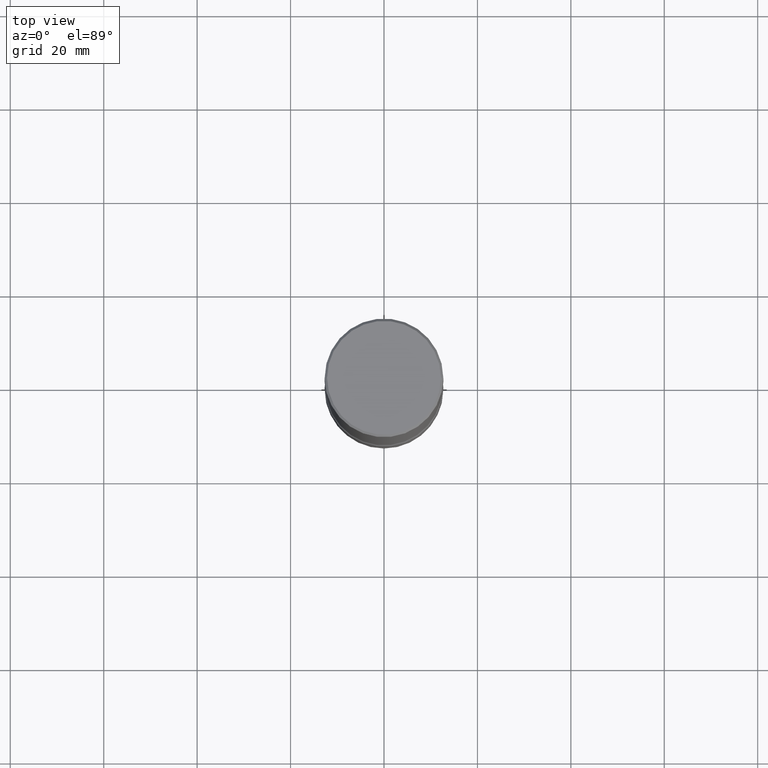
[diagram: clean part render]
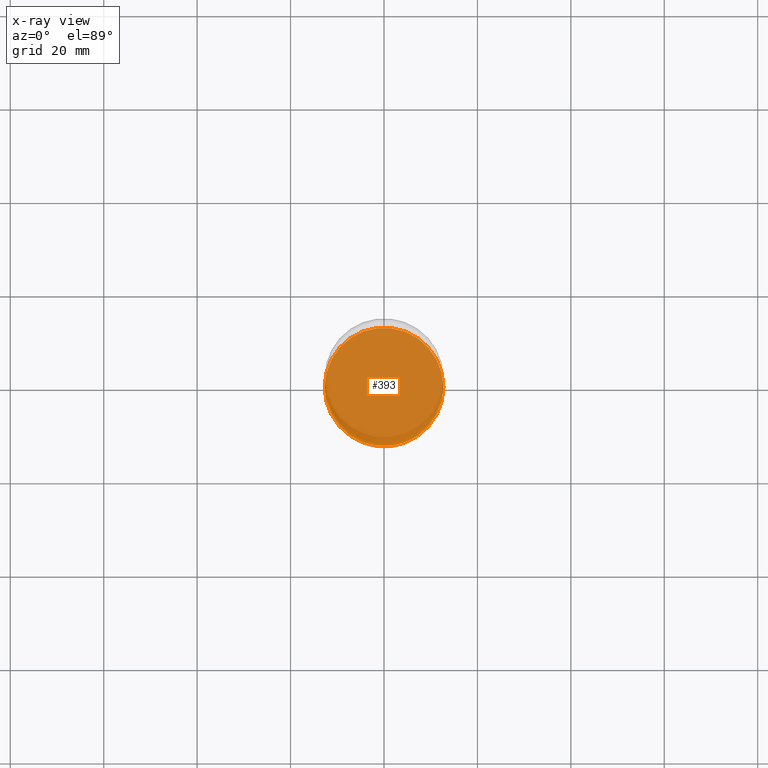
[diagram: x-ray — body ghosted, one internal face saturated and labeled with its STEP entity id]
A machine part, top view, then the same camera in x-ray: the body is ghosted and one INTERNAL B-rep face — a face not visible from any outside direction — is saturated and labeled: STEP entity #393.
In plain terms, the highlighted planar face has unit normal (0, -0, -1).
Its self-contained STEP definition (entity closure, byte-faithful):
#25 = DIRECTION ( 'NONE',  ( -1.000000000000000000, 6.982962677686268288E-15, 0.000000000000000000 ) ) ;
#26 = DIRECTION ( 'NONE',  ( -1.000000000000000000, 6.982962677686268288E-15, 0.000000000000000000 ) ) ;
#44 = CARTESIAN_POINT ( 'NONE',  ( 3.487989857504394083E-15, 0.4994999999999834572, -4.500000000000002665 ) ) ;
#49 = DIRECTION ( 'NONE',  ( 2.438088387897960049E-29, -3.491481338843145188E-15, -1.000000000000000000 ) ) ;
#88 = CARTESIAN_POINT ( 'NONE',  ( 0.4994999999999991114, -1.920026876819252099E-14, -4.500000000000000888 ) ) ;
#143 = CARTESIAN_POINT ( 'NONE',  ( 1.100460962783311693E-28, -1.571166602479415690E-14, -4.500000000000000888 ) ) ;
#164 = AXIS2_PLACEMENT_3D ( 'NONE', #143, #511, #26 ) ;
#217 = DIRECTION ( 'NONE',  ( -1.000000000000000000, 6.982962677686265922E-15, -4.876176775795935793E-29 ) ) ;
#220 = CARTESIAN_POINT ( 'NONE',  ( 1.100460962783311693E-28, -1.571166602479415690E-14, -4.500000000000000888 ) ) ;
#250 = AXIS2_PLACEMENT_3D ( 'NONE', #44, #49, #217 ) ;
#254 = AXIS2_PLACEMENT_3D ( 'NONE', #220, #454, #25 ) ;
#262 = CIRCLE ( 'NONE', #164, 0.4994999999999991114 ) ;
#269 = PLANE ( 'NONE',  #250 ) ;
#294 = VERTEX_POINT ( 'NONE', #88 ) ;
#307 = EDGE_CURVE ( 'NONE', #512, #294, #526, .T. ) ;
#320 = CARTESIAN_POINT ( 'NONE',  ( -0.4994999999999991114, -1.216064490484688391E-14, -4.500000000000000888 ) ) ;
#388 = ORIENTED_EDGE ( 'NONE', *, *, #423, .T. ) ;
#393 = ADVANCED_FACE ( 'NONE', ( #489 ), #269, .T. ) ;
#423 = EDGE_CURVE ( 'NONE', #294, #512, #262, .T. ) ;
#454 = DIRECTION ( 'NONE',  ( 2.445468806185136597E-29, -3.491481338843145583E-15, -1.000000000000000000 ) ) ;
#458 = ORIENTED_EDGE ( 'NONE', *, *, #307, .T. ) ;
#472 = EDGE_LOOP ( 'NONE', ( #388, #458 ) ) ;
#489 = FACE_OUTER_BOUND ( 'NONE', #472, .T. ) ;
#511 = DIRECTION ( 'NONE',  ( 2.445468806185136597E-29, -3.491481338843145583E-15, -1.000000000000000000 ) ) ;
#512 = VERTEX_POINT ( 'NONE', #320 ) ;
#526 = CIRCLE ( 'NONE', #254, 0.4994999999999991114 ) ;